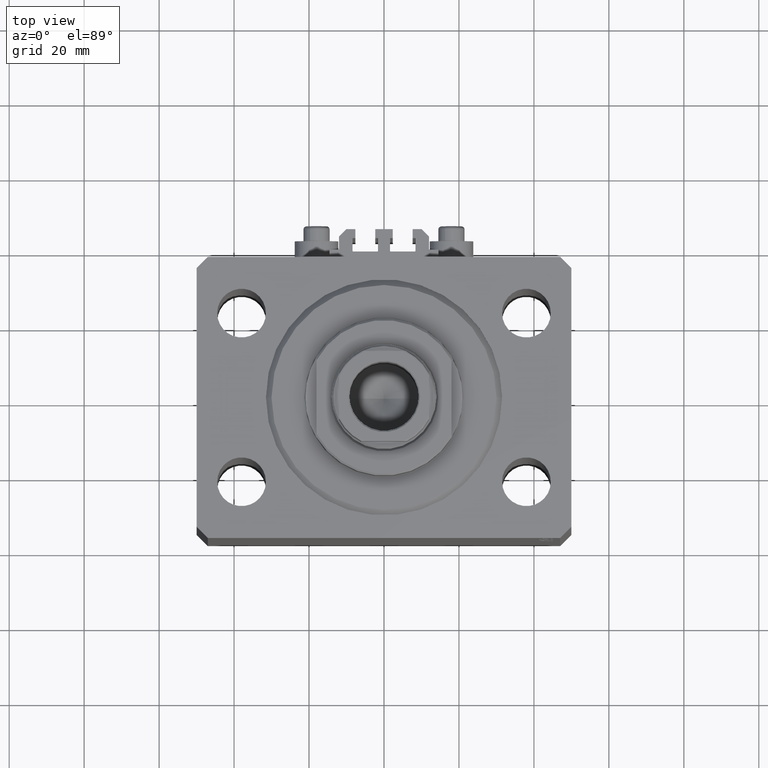
[diagram: clean part render]
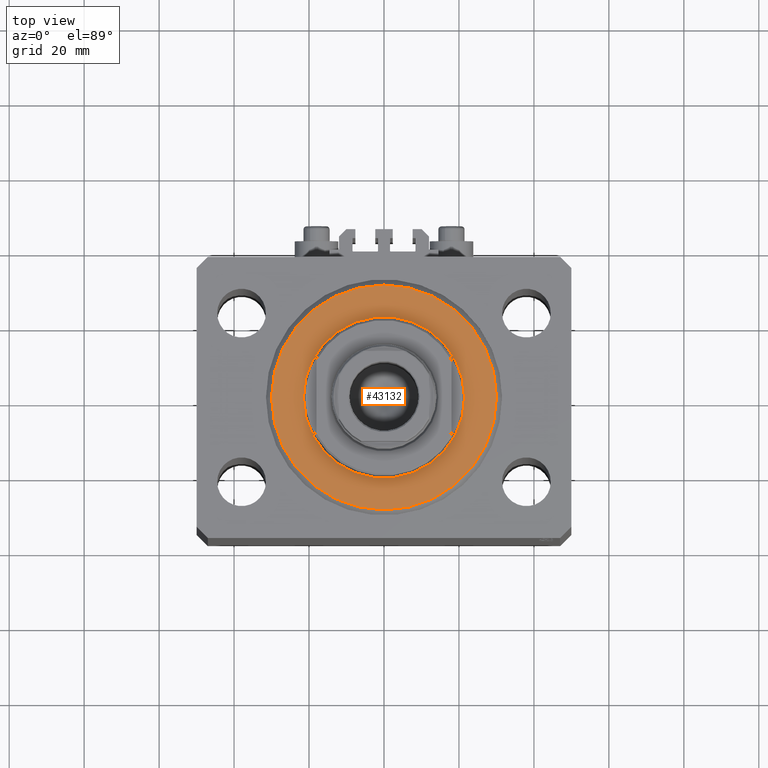
[diagram: same view with one face highlighted and labeled with its STEP entity id]
A machine part, top view. The second image highlights one B-rep face of the part: STEP entity #43132.
In plain terms, the highlighted planar face has unit normal (0, 0, -1).
Its self-contained STEP definition (entity closure, byte-faithful):
#167 = EDGE_CURVE ( 'NONE', #30186, #44819, #4746, .T. ) ;
#654 = CARTESIAN_POINT ( 'NONE',  ( 0.000000000000000000, 0.000000000000000000, 0.000000000000000000 ) ) ;
#1015 = DIRECTION ( 'NONE',  ( 1.000000000000000000, 0.000000000000000000, 0.000000000000000000 ) ) ;
#1421 = CIRCLE ( 'NONE', #38123, 29.99999999999999289 ) ;
#3571 = VERTEX_POINT ( 'NONE', #39974 ) ;
#4151 = CARTESIAN_POINT ( 'NONE',  ( 29.99999999999999289, 0.000000000000000000, 0.000000000000000000 ) ) ;
#4737 = EDGE_LOOP ( 'NONE', ( #43373, #6126 ) ) ;
#4746 = CIRCLE ( 'NONE', #43725, 29.99999999999999289 ) ;
#6126 = ORIENTED_EDGE ( 'NONE', *, *, #167, .T. ) ;
#7440 = CIRCLE ( 'NONE', #8992, 21.50000000000000000 ) ;
#8663 = DIRECTION ( 'NONE',  ( -0.000000000000000000, -0.000000000000000000, -1.000000000000000000 ) ) ;
#8992 = AXIS2_PLACEMENT_3D ( 'NONE', #45791, #32145, #39322 ) ;
#11424 = DIRECTION ( 'NONE',  ( 0.000000000000000000, 0.000000000000000000, 1.000000000000000000 ) ) ;
#11488 = FACE_OUTER_BOUND ( 'NONE', #4737, .T. ) ;
#12292 = VERTEX_POINT ( 'NONE', #15344 ) ;
#12807 = DIRECTION ( 'NONE',  ( 1.000000000000000000, 0.000000000000000000, 0.000000000000000000 ) ) ;
#15183 = AXIS2_PLACEMENT_3D ( 'NONE', #654, #11424, #33681 ) ;
#15326 = DIRECTION ( 'NONE',  ( 1.000000000000000000, 0.000000000000000000, -0.000000000000000000 ) ) ;
#15344 = CARTESIAN_POINT ( 'NONE',  ( -21.50000000000000000, 2.632990618166809630E-15, -2.168404344971008868E-16 ) ) ;
#17535 = EDGE_CURVE ( 'NONE', #12292, #3571, #7440, .T. ) ;
#17982 = ORIENTED_EDGE ( 'NONE', *, *, #20073, .T. ) ;
#18662 = FACE_BOUND ( 'NONE', #38113, .T. ) ;
#19678 = CARTESIAN_POINT ( 'NONE',  ( 0.000000000000000000, 0.000000000000000000, 0.000000000000000000 ) ) ;
#19740 = CARTESIAN_POINT ( 'NONE',  ( 0.000000000000000000, 0.000000000000000000, 0.000000000000000000 ) ) ;
#20073 = EDGE_CURVE ( 'NONE', #3571, #12292, #22779, .T. ) ;
#21424 = CARTESIAN_POINT ( 'NONE',  ( -29.99999999999999289, 3.765788907378110539E-15, 0.000000000000000000 ) ) ;
#22481 = CARTESIAN_POINT ( 'NONE',  ( 0.000000000000000000, 0.000000000000000000, 0.000000000000000000 ) ) ;
#22779 = CIRCLE ( 'NONE', #15183, 21.50000000000000000 ) ;
#26077 = PLANE ( 'NONE',  #31262 ) ;
#27145 = DIRECTION ( 'NONE',  ( -0.000000000000000000, -0.000000000000000000, -1.000000000000000000 ) ) ;
#30186 = VERTEX_POINT ( 'NONE', #21424 ) ;
#31262 = AXIS2_PLACEMENT_3D ( 'NONE', #22481, #37097, #15326 ) ;
#32145 = DIRECTION ( 'NONE',  ( 0.000000000000000000, 0.000000000000000000, 1.000000000000000000 ) ) ;
#33681 = DIRECTION ( 'NONE',  ( 1.000000000000000000, 0.000000000000000000, 0.000000000000000000 ) ) ;
#37097 = DIRECTION ( 'NONE',  ( 0.000000000000000000, 0.000000000000000000, 1.000000000000000000 ) ) ;
#38113 = EDGE_LOOP ( 'NONE', ( #17982, #41180 ) ) ;
#38123 = AXIS2_PLACEMENT_3D ( 'NONE', #19740, #27145, #12807 ) ;
#39322 = DIRECTION ( 'NONE',  ( 1.000000000000000000, 0.000000000000000000, 0.000000000000000000 ) ) ;
#39974 = CARTESIAN_POINT ( 'NONE',  ( 21.50000000000000000, 0.000000000000000000, -2.168404344971008868E-16 ) ) ;
#41180 = ORIENTED_EDGE ( 'NONE', *, *, #17535, .T. ) ;
#42554 = EDGE_CURVE ( 'NONE', #44819, #30186, #1421, .T. ) ;
#43132 = ADVANCED_FACE ( 'NONE', ( #18662, #11488 ), #26077, .F. ) ;
#43373 = ORIENTED_EDGE ( 'NONE', *, *, #42554, .T. ) ;
#43725 = AXIS2_PLACEMENT_3D ( 'NONE', #19678, #8663, #1015 ) ;
#44819 = VERTEX_POINT ( 'NONE', #4151 ) ;
#45791 = CARTESIAN_POINT ( 'NONE',  ( 0.000000000000000000, 0.000000000000000000, 0.000000000000000000 ) ) ;